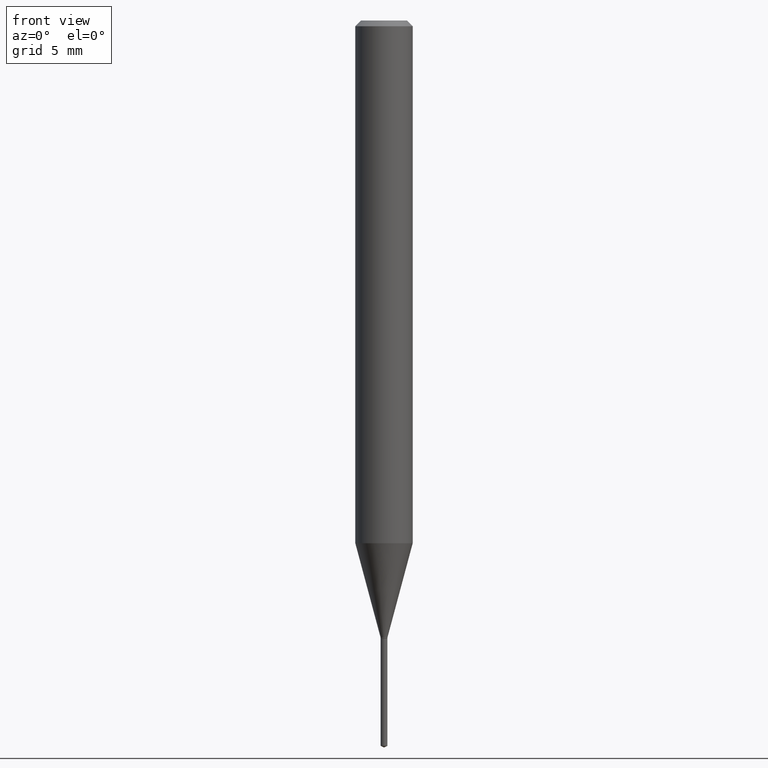
[diagram: clean part render]
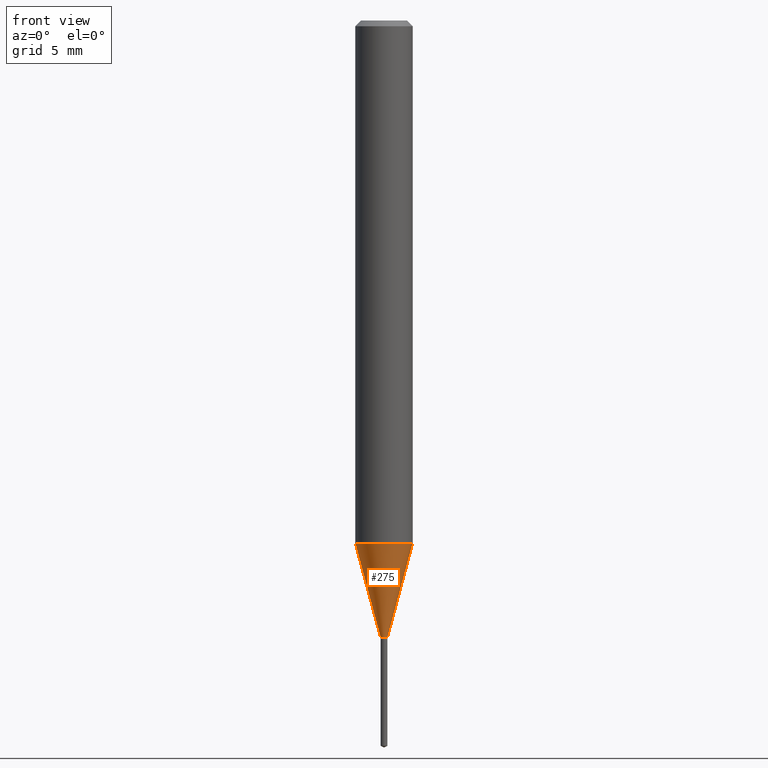
[diagram: same view with one face highlighted and labeled with its STEP entity id]
A machine part, front view. The second image highlights one B-rep face of the part: STEP entity #275.
In plain terms, the highlighted conical surface has half-angle 15 deg.
Its self-contained STEP definition (entity closure, byte-faithful):
#3 = ORIENTED_EDGE ( 'NONE', *, *, #359, .T. ) ;
#11 = DIRECTION ( 'NONE',  ( 0.2588190451025213501, 1.565188264969621968E-15, 0.9659258262890682012 ) ) ;
#18 = VECTOR ( 'NONE', #11, 39.37007874015747433 ) ;
#21 = VERTEX_POINT ( 'NONE', #59 ) ;
#24 = EDGE_CURVE ( 'NONE', #92, #314, #276, .T. ) ;
#35 = EDGE_CURVE ( 'NONE', #314, #21, #280, .T. ) ;
#38 = DIRECTION ( 'NONE',  ( -2.445468806185136597E-29, 3.491481338843145583E-15, 1.000000000000000000 ) ) ;
#45 = DIRECTION ( 'NONE',  ( -0.2588190451025213501, 5.211531920934551042E-15, 0.9659258262890682012 ) ) ;
#52 = CARTESIAN_POINT ( 'NONE',  ( 3.104767196332649259E-29, -4.432784707795257778E-15, -1.269600000000000062 ) ) ;
#59 = CARTESIAN_POINT ( 'NONE',  ( 0.05905000000000013710, -4.168200114187600418E-15, -1.075719960546796861 ) ) ;
#62 = AXIS2_PLACEMENT_3D ( 'NONE', #390, #370, #356 ) ;
#82 = CARTESIAN_POINT ( 'NONE',  ( -0.05905000000000013710, -3.336280682603885216E-15, -1.075719960546796861 ) ) ;
#92 = VERTEX_POINT ( 'NONE', #413 ) ;
#123 = LINE ( 'NONE', #132, #18 ) ;
#132 = CARTESIAN_POINT ( 'NONE',  ( 0.007100000000000000408, -4.482363742806830057E-15, -1.269600000000000062 ) ) ;
#160 = AXIS2_PLACEMENT_3D ( 'NONE', #52, #38, #209 ) ;
#165 = DIRECTION ( 'NONE',  ( 1.000000000000000000, -6.982962677686265133E-15, 0.000000000000000000 ) ) ;
#205 = DIRECTION ( 'NONE',  ( -2.445468806185136597E-29, 3.491481338843145583E-15, 1.000000000000000000 ) ) ;
#209 = DIRECTION ( 'NONE',  ( 1.000000000000000000, -6.982962677686291954E-15, 0.000000000000000000 ) ) ;
#230 = CIRCLE ( 'NONE', #62, 0.007100000000000000408 ) ;
#238 = CARTESIAN_POINT ( 'NONE',  ( -0.007100000000000000408, -4.382336173556289910E-15, -1.269600000000000062 ) ) ;
#275 = ADVANCED_FACE ( 'NONE', ( #354 ), #378, .T. ) ;
#276 = LINE ( 'NONE', #238, #477 ) ;
#280 = CIRCLE ( 'NONE', #289, 0.05905000000000013016 ) ;
#289 = AXIS2_PLACEMENT_3D ( 'NONE', #307, #205, #165 ) ;
#307 = CARTESIAN_POINT ( 'NONE',  ( 2.630639607707897401E-29, -3.755856168070225498E-15, -1.075719960546796861 ) ) ;
#314 = VERTEX_POINT ( 'NONE', #82 ) ;
#316 = CARTESIAN_POINT ( 'NONE',  ( 0.007100000000000000408, -4.482363742806830057E-15, -1.269600000000000062 ) ) ;
#326 = ORIENTED_EDGE ( 'NONE', *, *, #382, .T. ) ;
#354 = FACE_OUTER_BOUND ( 'NONE', #462, .T. ) ;
#356 = DIRECTION ( 'NONE',  ( 1.000000000000000000, -6.982962677686291954E-15, 0.000000000000000000 ) ) ;
#359 = EDGE_CURVE ( 'NONE', #391, #21, #123, .T. ) ;
#370 = DIRECTION ( 'NONE',  ( -2.445468806185136597E-29, 3.491481338843145583E-15, 1.000000000000000000 ) ) ;
#378 = CONICAL_SURFACE ( 'NONE', #160, 0.007100000000000000408, 0.2617993877991500740 ) ;
#382 = EDGE_CURVE ( 'NONE', #92, #391, #230, .T. ) ;
#390 = CARTESIAN_POINT ( 'NONE',  ( 3.104767196332649259E-29, -4.432784707795257778E-15, -1.269600000000000062 ) ) ;
#391 = VERTEX_POINT ( 'NONE', #316 ) ;
#413 = CARTESIAN_POINT ( 'NONE',  ( -0.007100000000000000408, -4.385129358627364316E-15, -1.269600000000000062 ) ) ;
#438 = ORIENTED_EDGE ( 'NONE', *, *, #35, .F. ) ;
#444 = ORIENTED_EDGE ( 'NONE', *, *, #24, .F. ) ;
#462 = EDGE_LOOP ( 'NONE', ( #444, #326, #3, #438 ) ) ;
#477 = VECTOR ( 'NONE', #45, 39.37007874015747433 ) ;